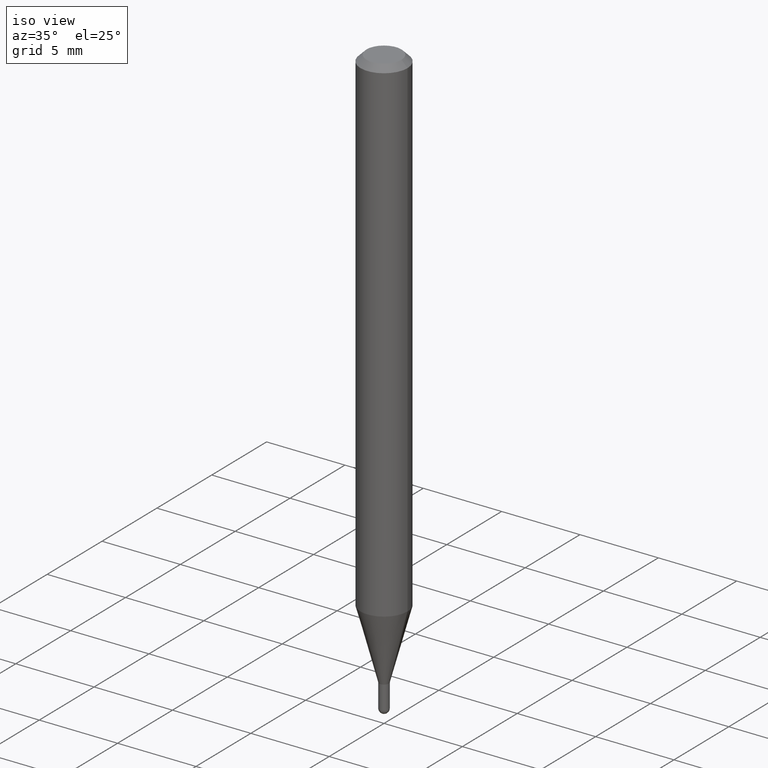
[diagram: clean part render]
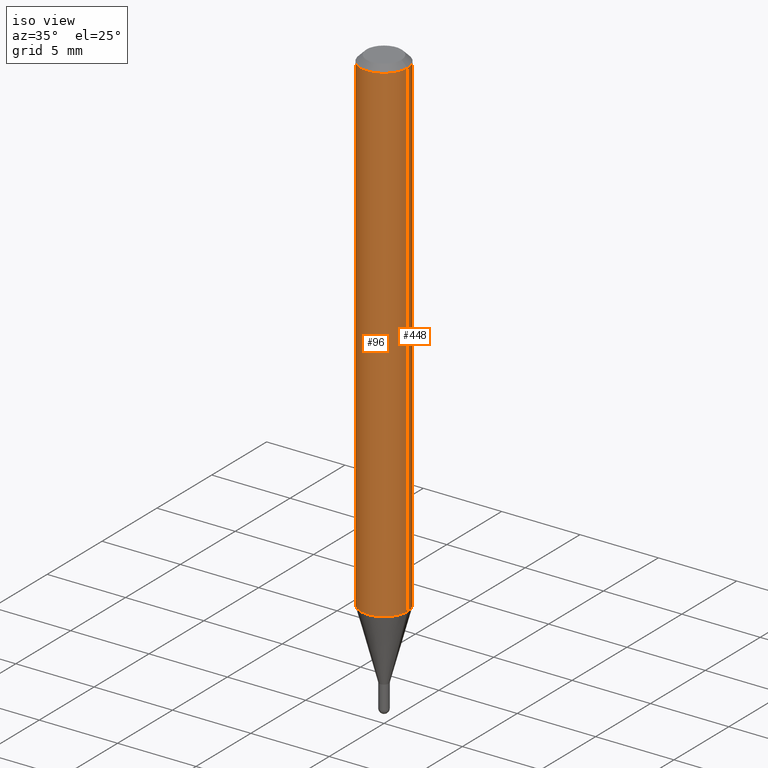
[diagram: same view with one multi-face feature highlighted, each face labeled with its STEP entity id]
A machine part, iso view. The highlighted faces form ONE feature: a constant-radius fillet chain: 2 tangent blend faces with common blend radius 1.4999 mm. The faces share edges in the B-rep.
Their STEP definitions:
[1] entity #96 (Cylinder):
#3 = VERTEX_POINT ( 'NONE', #282 ) ;
#30 = DIRECTION ( 'NONE',  ( -2.445468806185136877E-29, 3.491481338843145188E-15, 1.000000000000000000 ) ) ;
#56 = EDGE_CURVE ( 'NONE', #145, #268, #500, .T. ) ;
#66 = EDGE_CURVE ( 'NONE', #3, #346, #250, .T. ) ;
#70 = LINE ( 'NONE', #147, #220 ) ;
#87 = AXIS2_PLACEMENT_3D ( 'NONE', #300, #416, #210 ) ;
#96 = ADVANCED_FACE ( 'NONE', ( #325 ), #462, .T. ) ;
#132 = ORIENTED_EDGE ( 'NONE', *, *, #66, .T. ) ;
#144 = CARTESIAN_POINT ( 'NONE',  ( 0.05904999999999999832, -4.647161662000215063E-16, -0.01500000000000008098 ) ) ;
#145 = VERTEX_POINT ( 'NONE', #194 ) ;
#147 = CARTESIAN_POINT ( 'NONE',  ( -0.05904999999999999832, 4.195754854663391478E-16, -2.904631170795521892E-30 ) ) ;
#194 = CARTESIAN_POINT ( 'NONE',  ( -0.05904999999999999832, -1.786797363285172040E-15, -0.01500000000000008098 ) ) ;
#198 = LINE ( 'NONE', #453, #280 ) ;
#205 = CARTESIAN_POINT ( 'NONE',  ( 3.668203209277724356E-31, -5.237222008264746748E-17, -0.01500000000000008098 ) ) ;
#210 = DIRECTION ( 'NONE',  ( 1.000000000000000000, -6.982962677686266711E-15, 4.876176775795936353E-29 ) ) ;
#217 = EDGE_CURVE ( 'NONE', #3, #145, #70, .T. ) ;
#219 = EDGE_LOOP ( 'NONE', ( #508, #132, #312, #443 ) ) ;
#220 = VECTOR ( 'NONE', #30, 39.37007874015748143 ) ;
#238 = DIRECTION ( 'NONE',  ( -2.445468806185136877E-29, 3.491481338843145188E-15, 1.000000000000000000 ) ) ;
#241 = DIRECTION ( 'NONE',  ( 1.000000000000000000, -6.982962677686266711E-15, 0.000000000000000000 ) ) ;
#244 = DIRECTION ( 'NONE',  ( -2.445468806185136597E-29, 3.491481338843145583E-15, 1.000000000000000000 ) ) ;
#250 = CIRCLE ( 'NONE', #450, 0.05904999999999999832 ) ;
#264 = AXIS2_PLACEMENT_3D ( 'NONE', #205, #244, #241 ) ;
#268 = VERTEX_POINT ( 'NONE', #144 ) ;
#280 = VECTOR ( 'NONE', #238, 39.37007874015748143 ) ;
#282 = CARTESIAN_POINT ( 'NONE',  ( -0.05904999999999999832, -3.940797991954035310E-15, -1.248860599342376920 ) ) ;
#300 = CARTESIAN_POINT ( 'NONE',  ( 0.000000000000000000, 0.000000000000000000, 0.000000000000000000 ) ) ;
#312 = ORIENTED_EDGE ( 'NONE', *, *, #512, .T. ) ;
#325 = FACE_OUTER_BOUND ( 'NONE', #219, .T. ) ;
#346 = VERTEX_POINT ( 'NONE', #470 ) ;
#372 = CARTESIAN_POINT ( 'NONE',  ( 3.054049638965456516E-29, -4.360373477420374803E-15, -1.248860599342376920 ) ) ;
#376 = DIRECTION ( 'NONE',  ( 1.000000000000000000, -6.982962677686265133E-15, 0.000000000000000000 ) ) ;
#415 = DIRECTION ( 'NONE',  ( -2.445468806185136597E-29, 3.491481338843145583E-15, 1.000000000000000000 ) ) ;
#416 = DIRECTION ( 'NONE',  ( -2.445468806185136597E-29, 3.491481338843145583E-15, 1.000000000000000000 ) ) ;
#443 = ORIENTED_EDGE ( 'NONE', *, *, #56, .F. ) ;
#450 = AXIS2_PLACEMENT_3D ( 'NONE', #372, #415, #376 ) ;
#453 = CARTESIAN_POINT ( 'NONE',  ( 0.05904999999999999832, -4.123439461173740327E-16, 2.879382386107500220E-30 ) ) ;
#462 = CYLINDRICAL_SURFACE ( 'NONE', #87, 0.05904999999999999832 ) ;
#470 = CARTESIAN_POINT ( 'NONE',  ( 0.05904999999999999832, -4.772717423537748934E-15, -1.248860599342376920 ) ) ;
#500 = CIRCLE ( 'NONE', #264, 0.05904999999999999832 ) ;
#508 = ORIENTED_EDGE ( 'NONE', *, *, #217, .F. ) ;
#512 = EDGE_CURVE ( 'NONE', #346, #268, #198, .T. ) ;
[2] entity #448 (Cylinder):
#3 = VERTEX_POINT ( 'NONE', #282 ) ;
#30 = DIRECTION ( 'NONE',  ( -2.445468806185136877E-29, 3.491481338843145188E-15, 1.000000000000000000 ) ) ;
#70 = LINE ( 'NONE', #147, #220 ) ;
#95 = FACE_OUTER_BOUND ( 'NONE', #215, .T. ) ;
#103 = DIRECTION ( 'NONE',  ( -2.445468806185136597E-29, 3.491481338843145583E-15, 1.000000000000000000 ) ) ;
#108 = CARTESIAN_POINT ( 'NONE',  ( 0.000000000000000000, 0.000000000000000000, 0.000000000000000000 ) ) ;
#122 = AXIS2_PLACEMENT_3D ( 'NONE', #108, #226, #261 ) ;
#127 = CIRCLE ( 'NONE', #432, 0.05904999999999999832 ) ;
#144 = CARTESIAN_POINT ( 'NONE',  ( 0.05904999999999999832, -4.647161662000215063E-16, -0.01500000000000008098 ) ) ;
#145 = VERTEX_POINT ( 'NONE', #194 ) ;
#147 = CARTESIAN_POINT ( 'NONE',  ( -0.05904999999999999832, 4.195754854663391478E-16, -2.904631170795521892E-30 ) ) ;
#164 = AXIS2_PLACEMENT_3D ( 'NONE', #218, #391, #495 ) ;
#194 = CARTESIAN_POINT ( 'NONE',  ( -0.05904999999999999832, -1.786797363285172040E-15, -0.01500000000000008098 ) ) ;
#198 = LINE ( 'NONE', #453, #280 ) ;
#214 = DIRECTION ( 'NONE',  ( 1.000000000000000000, -6.982962677686265133E-15, 0.000000000000000000 ) ) ;
#215 = EDGE_LOOP ( 'NONE', ( #456, #223, #340, #298 ) ) ;
#217 = EDGE_CURVE ( 'NONE', #3, #145, #70, .T. ) ;
#218 = CARTESIAN_POINT ( 'NONE',  ( 3.668203209277724356E-31, -5.237222008264746748E-17, -0.01500000000000008098 ) ) ;
#220 = VECTOR ( 'NONE', #30, 39.37007874015748143 ) ;
#223 = ORIENTED_EDGE ( 'NONE', *, *, #217, .T. ) ;
#226 = DIRECTION ( 'NONE',  ( -2.445468806185136597E-29, 3.491481338843145583E-15, 1.000000000000000000 ) ) ;
#227 = EDGE_CURVE ( 'NONE', #346, #3, #127, .T. ) ;
#235 = EDGE_CURVE ( 'NONE', #268, #145, #403, .T. ) ;
#238 = DIRECTION ( 'NONE',  ( -2.445468806185136877E-29, 3.491481338843145188E-15, 1.000000000000000000 ) ) ;
#261 = DIRECTION ( 'NONE',  ( 1.000000000000000000, -6.982962677686266711E-15, 4.876176775795936353E-29 ) ) ;
#268 = VERTEX_POINT ( 'NONE', #144 ) ;
#280 = VECTOR ( 'NONE', #238, 39.37007874015748143 ) ;
#282 = CARTESIAN_POINT ( 'NONE',  ( -0.05904999999999999832, -3.940797991954035310E-15, -1.248860599342376920 ) ) ;
#298 = ORIENTED_EDGE ( 'NONE', *, *, #512, .F. ) ;
#340 = ORIENTED_EDGE ( 'NONE', *, *, #235, .F. ) ;
#346 = VERTEX_POINT ( 'NONE', #470 ) ;
#391 = DIRECTION ( 'NONE',  ( -2.445468806185136597E-29, 3.491481338843145583E-15, 1.000000000000000000 ) ) ;
#403 = CIRCLE ( 'NONE', #164, 0.05904999999999999832 ) ;
#432 = AXIS2_PLACEMENT_3D ( 'NONE', #467, #103, #214 ) ;
#448 = ADVANCED_FACE ( 'NONE', ( #95 ), #464, .T. ) ;
#453 = CARTESIAN_POINT ( 'NONE',  ( 0.05904999999999999832, -4.123439461173740327E-16, 2.879382386107500220E-30 ) ) ;
#456 = ORIENTED_EDGE ( 'NONE', *, *, #227, .T. ) ;
#464 = CYLINDRICAL_SURFACE ( 'NONE', #122, 0.05904999999999999832 ) ;
#467 = CARTESIAN_POINT ( 'NONE',  ( 3.054049638965456516E-29, -4.360373477420374803E-15, -1.248860599342376920 ) ) ;
#470 = CARTESIAN_POINT ( 'NONE',  ( 0.05904999999999999832, -4.772717423537748934E-15, -1.248860599342376920 ) ) ;
#495 = DIRECTION ( 'NONE',  ( 1.000000000000000000, -6.982962677686266711E-15, 0.000000000000000000 ) ) ;
#512 = EDGE_CURVE ( 'NONE', #346, #268, #198, .T. ) ;